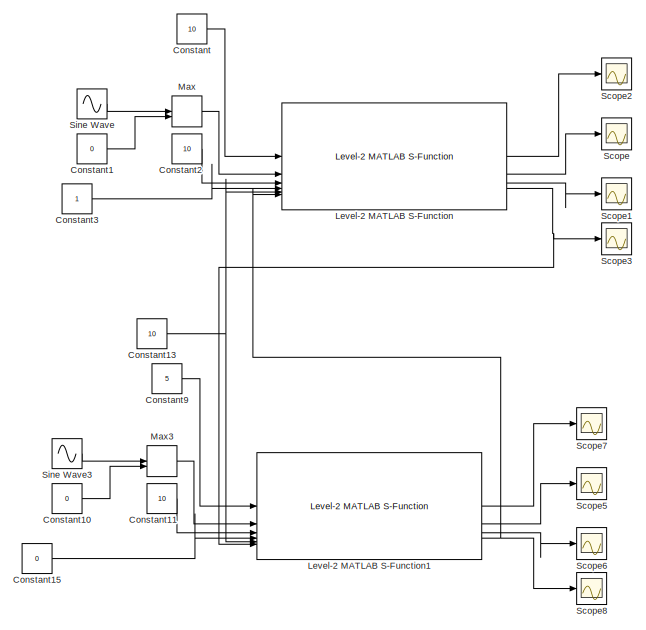
[diagram: root canvas - part 1/2, left side, full height]
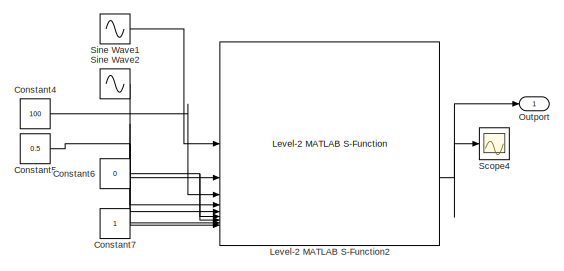
[diagram: root canvas - part 2/2, middle right region]
MODEL slx_e58f5cb6a47e
KIND model
CONFIG AbsTol = auto
CONFIG EnableMultiTasking = off
CONFIG FixedStep = 0.05
CONFIG MaxStep = auto
CONFIG MinStep = auto
CONFIG RelTol = 1e-3
CONFIG SampleTimeConstraint = Unconstrained
CONFIG SolverName = ode1
CONFIG StartTime = 0.0
CONFIG StopTime = 50
BLOCK [Constant] Constant
  Commented = on
  Value = 10
BLOCK [Constant] Constant1
  Commented = on
  Value = 0
BLOCK [Constant] Constant10
  Commented = on
  Value = 0
BLOCK [Constant] Constant11
  Commented = on
  Value = 10
BLOCK [Constant] Constant13
  Commented = on
  Value = 10
BLOCK [Constant] Constant15
  Commented = on
  Value = 0
BLOCK [Constant] Constant2
  Commented = on
  Value = 10
BLOCK [Constant] Constant3
  Commented = on
BLOCK [Constant] Constant4
  Value = 100
BLOCK [Constant] Constant5
  Value = 0.5
BLOCK [Constant] Constant6
  Value = 0
BLOCK [Constant] Constant7
BLOCK [Constant] Constant9
  Commented = on
  Value = 5
BLOCK [Reference] Level-2 MATLAB S-Function  REF=storage_lib/Level-2 MATLAB
S-Function
  Commented = on
  SourceBlock = storage_lib/Level-2 MATLAB\nS-Function
BLOCK [Reference] Level-2 MATLAB S-Function1  REF=storage_lib/Level-2 MATLAB
S-Function
  Commented = on
  SourceBlock = storage_lib/Level-2 MATLAB\nS-Function
BLOCK [Reference] Level-2 MATLAB S-Function2  REF=storage_lib/Level-2 MATLAB
S-Function
  SourceBlock = storage_lib/Level-2 MATLAB\nS-Function
BLOCK [MinMax] Max
  Commented = on
  Function = max
  Inputs = 2
BLOCK [MinMax] Max3
  Commented = on
  Function = max
  Inputs = 2
BLOCK [Outport] Outport
BLOCK [Scope] Scope
  Commented = on
  Floating = off
  NumInputPorts = 1
  ScopeSpecificationString = Simulink.scopes.TimeScopeBlockCfg('CurrentConfiguration', extmgr.ConfigurationSet(extmgr.Configuration('Core','General UI',true),extmgr.Configuration('Core','Source UI',true),extmgr.Configuration('Sources','WiredSimulink',true),extmgr.Configuration('Visuals','Time Domain',true,'SerializedDisplays',{struct('MinYLimReal','50.00000','MaxYLimReal','550.00000','YLabelReal','','MinYLimMag','50.00000','M...<+1386ch>
BLOCK [Scope] Scope1
  Commented = on
  Floating = off
  NumInputPorts = 1
  ScopeSpecificationString = Simulink.scopes.TimeScopeBlockCfg('CurrentConfiguration', extmgr.ConfigurationSet(extmgr.Configuration('Core','General UI',true),extmgr.Configuration('Core','Source UI',true),extmgr.Configuration('Sources','WiredSimulink',true,'DataLoggingVariableName','ScopeData1'),extmgr.Configuration('Visuals','Time Domain',true,'SerializedDisplays',{struct('MinYLimReal','-0.13691','MaxYLimReal','1.14908','YLab...<+1434ch>
BLOCK [Scope] Scope2
  Commented = on
  Floating = off
  NumInputPorts = 1
  ScopeSpecificationString = Simulink.scopes.TimeScopeBlockCfg('CurrentConfiguration', extmgr.ConfigurationSet(extmgr.Configuration('Core','General UI',true),extmgr.Configuration('Core','Source UI',true),extmgr.Configuration('Sources','WiredSimulink',true,'DataLoggingVariableName','ScopeData2'),extmgr.Configuration('Visuals','Time Domain',true,'SerializedDisplays',{struct('MinYLimReal','-1.25','MaxYLimReal','11.25','YLabelRea...<+1401ch>
BLOCK [Scope] Scope3
  Commented = on
  Floating = off
  NumInputPorts = 1
  ScopeSpecificationString = Simulink.scopes.TimeScopeBlockCfg('CurrentConfiguration', extmgr.ConfigurationSet(extmgr.Configuration('Core','General UI',true),extmgr.Configuration('Core','Source UI',true),extmgr.Configuration('Sources','WiredSimulink',true,'DataLoggingVariableName','ScopeData1'),extmgr.Configuration('Visuals','Time Domain',true,'SerializedDisplays',{struct('MinYLimReal','-1.25','MaxYLimReal','11.25','YLabelRea...<+1423ch>
BLOCK [Scope] Scope4
  Floating = off
  NumInputPorts = 1
  ScopeSpecificationString = Simulink.scopes.TimeScopeBlockCfg('CurrentConfiguration', extmgr.ConfigurationSet(extmgr.Configuration('Core','General UI',true),extmgr.Configuration('Core','Source UI',true),extmgr.Configuration('Sources','WiredSimulink',true,'DataLoggingVariableName','ScopeData2'),extmgr.Configuration('Visuals','Time Domain',true,'SerializedDisplays',{struct('MinYLimReal','3.30817','MaxYLimReal','58.89308','YLab...<+1507ch>
BLOCK [Scope] Scope5
  Commented = on
  Floating = off
  NumInputPorts = 1
  ScopeSpecificationString = Simulink.scopes.TimeScopeBlockCfg('CurrentConfiguration', extmgr.ConfigurationSet(extmgr.Configuration('Core','General UI',true),extmgr.Configuration('Core','Source UI',true),extmgr.Configuration('Sources','WiredSimulink',true,'DataLoggingVariableName','ScopeData3'),extmgr.Configuration('Visuals','Time Domain',true,'SerializedDisplays',{struct('MinYLimReal','56.41799','MaxYLimReal','410.34397','YL...<+1426ch>
BLOCK [Scope] Scope6
  Commented = on
  Floating = off
  NumInputPorts = 1
  ScopeSpecificationString = Simulink.scopes.TimeScopeBlockCfg('CurrentConfiguration', extmgr.ConfigurationSet(extmgr.Configuration('Core','General UI',true),extmgr.Configuration('Core','Source UI',true),extmgr.Configuration('Sources','WiredSimulink',true,'DataLoggingVariableName','ScopeData4'),extmgr.Configuration('Visuals','Time Domain',true,'SerializedDisplays',{struct('MinYLimReal','-0.13691','MaxYLimReal','1.14908','YLab...<+1435ch>
BLOCK [Scope] Scope7
  Commented = on
  Floating = off
  NumInputPorts = 1
  ScopeSpecificationString = Simulink.scopes.TimeScopeBlockCfg('CurrentConfiguration', extmgr.ConfigurationSet(extmgr.Configuration('Core','General UI',true),extmgr.Configuration('Core','Source UI',true),extmgr.Configuration('Sources','WiredSimulink',true,'DataLoggingVariableName','ScopeData5'),extmgr.Configuration('Visuals','Time Domain',true,'SerializedDisplays',{struct('MinYLimReal','-1.25','MaxYLimReal','11.25','YLabelRea...<+1402ch>
BLOCK [Scope] Scope8
  Commented = on
  Floating = off
  NumInputPorts = 1
  ScopeSpecificationString = Simulink.scopes.TimeScopeBlockCfg('CurrentConfiguration', extmgr.ConfigurationSet(extmgr.Configuration('Core','General UI',true),extmgr.Configuration('Core','Source UI',true),extmgr.Configuration('Sources','WiredSimulink',true,'DataLoggingVariableName','ScopeData6'),extmgr.Configuration('Visuals','Time Domain',true,'SerializedDisplays',{struct('MinYLimReal','-1.25','MaxYLimReal','11.25','YLabelRea...<+1424ch>
BLOCK [Sin] Sine Wave
  Amplitude = 20
  Commented = on
  SampleTime = 0
BLOCK [Sin] Sine Wave1
  Amplitude = 2
  Bias = 2
  Frequency = 1/5
  SampleTime = 0
BLOCK [Sin] Sine Wave2
  Amplitude = 2
  Bias = 2
  SampleTime = 0
BLOCK [Sin] Sine Wave3
  Amplitude = 20
  Commented = on
  SampleTime = 0
LINE Constant10:1 -> Max3:2
LINE Constant11:1 -> Level-2 MATLAB S-Function1:3
NET Constant13:1 -> Level-2 MATLAB S-Function1:5, Level-2 MATLAB S-Function:5
LINE Constant15:1 -> Level-2 MATLAB S-Function1:4
LINE Constant1:1 -> Max:2
LINE Constant2:1 -> Level-2 MATLAB S-Function:3
LINE Constant3:1 -> Level-2 MATLAB S-Function:4
LINE Constant4:1 -> Level-2 MATLAB S-Function2:3
NET Constant5:1 -> Level-2 MATLAB S-Function2:4, Level-2 MATLAB S-Function2:5, Level-2 MATLAB S-Function2:8
NET Constant6:1 -> Level-2 MATLAB S-Function2:6, Level-2 MATLAB S-Function2:7
LINE Constant7:1 -> Level-2 MATLAB S-Function2:9
LINE Constant9:1 -> Level-2 MATLAB S-Function1:1
LINE Constant:1 -> Level-2 MATLAB S-Function:1
LINE Level-2 MATLAB S-Function1:1 -> Scope7:1
LINE Level-2 MATLAB S-Function1:2 -> Scope5:1
LINE Level-2 MATLAB S-Function1:3 -> Scope6:1
NET Level-2 MATLAB S-Function1:4 -> Level-2 MATLAB S-Function:6, Scope8:1
NET Level-2 MATLAB S-Function2:2 -> Outport:1, Scope4:1
LINE Level-2 MATLAB S-Function:1 -> Scope2:1
LINE Level-2 MATLAB S-Function:2 -> Scope:1
LINE Level-2 MATLAB S-Function:3 -> Scope1:1
NET Level-2 MATLAB S-Function:4 -> Level-2 MATLAB S-Function1:6, Scope3:1
LINE Max3:1 -> Level-2 MATLAB S-Function1:2
LINE Max:1 -> Level-2 MATLAB S-Function:2
LINE Sine Wave1:1 -> Level-2 MATLAB S-Function2:1
LINE Sine Wave2:1 -> Level-2 MATLAB S-Function2:2
LINE Sine Wave3:1 -> Max3:1
LINE Sine Wave:1 -> Max:1
note: NET lines group one-source signal fan-out (src -> all destinations, sorted); 1:1 wires keep LINE
